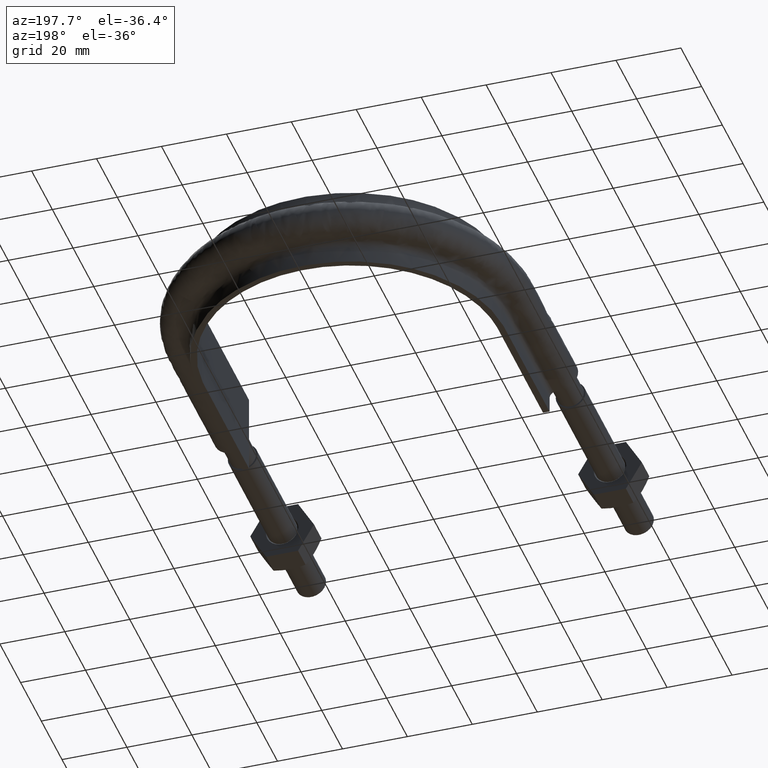
[diagram: clean part render]
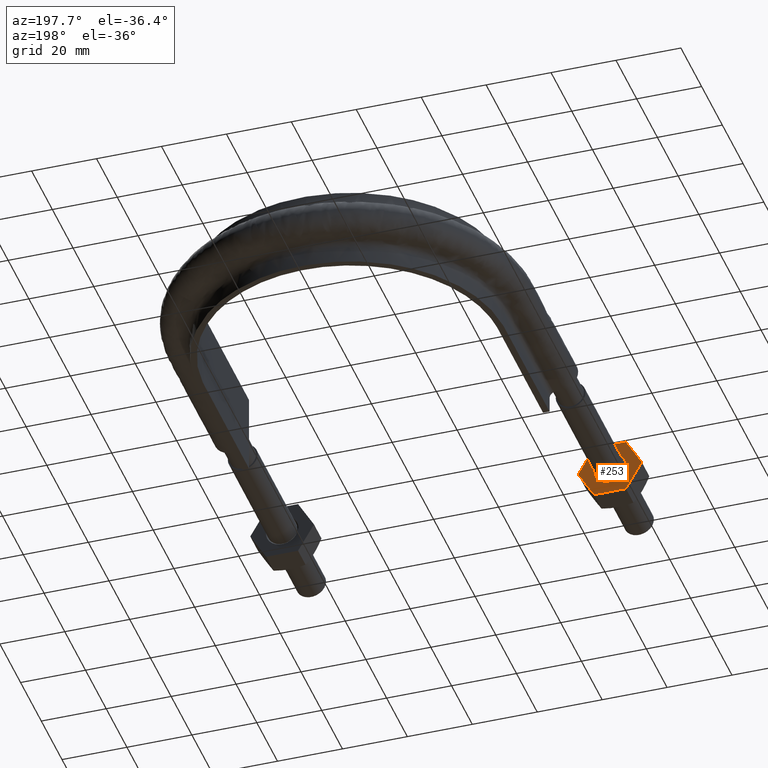
[diagram: same view with one face highlighted and labeled with its STEP entity id]
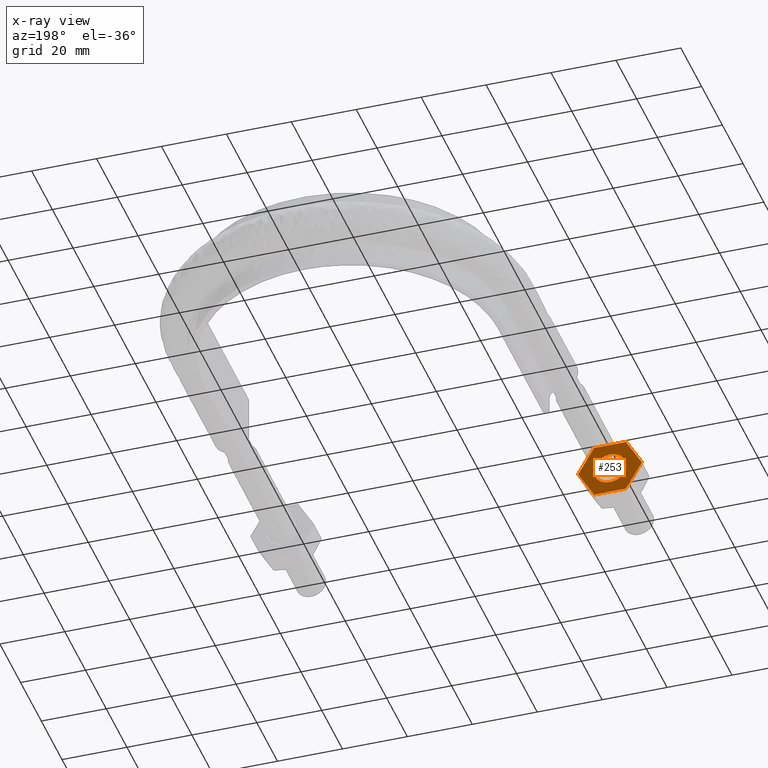
[diagram: x-ray of the same camera — body ghosted, the highlighted face saturated]
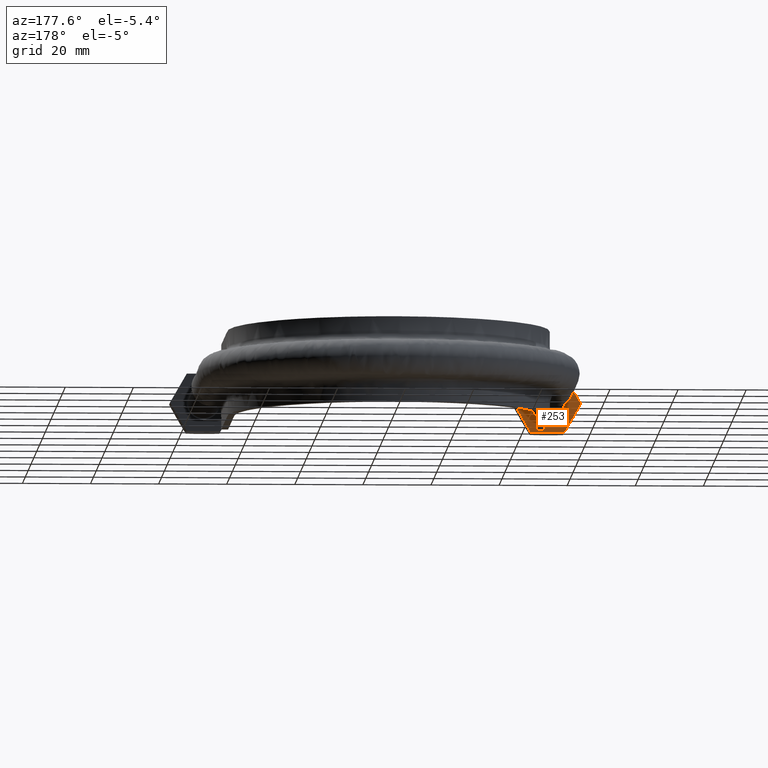
[diagram: same view with one face highlighted and labeled with its STEP entity id]
A machine part, auxiliary view. The second image highlights one B-rep face of the part: STEP entity #253.
The next image is the same camera in x-ray: the body ghosted, the highlighted face saturated — about 0% of this face is hidden behind the body in this view.
A second angle (auxiliary view) of the same face is appended — the face is thin or edge-on in the first view.
In plain terms, the highlighted planar face has unit normal (-0, -1, -0).
Its self-contained STEP definition (entity closure, byte-faithful):
#253 = ADVANCED_FACE( '', ( #375, #376 ), #377, .F. );
#375 = FACE_BOUND( '', #1361, .T. );
#376 = FACE_OUTER_BOUND( '', #1362, .T. );
#377 = PLANE( '', #1363 );
#1361 = EDGE_LOOP( '', ( #1677 ) );
#1362 = EDGE_LOOP( '', ( #1678, #1679, #1680, #1681, #1682, #1683, #1684, #1685, #1686, #1687, #1688, #1689 ) );
#1363 = AXIS2_PLACEMENT_3D( '', #1690, #1691, #1692 );
#1677 = ORIENTED_EDGE( '', *, *, #2055, .F. );
#1678 = ORIENTED_EDGE( '', *, *, #2056, .T. );
#1679 = ORIENTED_EDGE( '', *, *, #2057, .T. );
#1680 = ORIENTED_EDGE( '', *, *, #2058, .T. );
#1681 = ORIENTED_EDGE( '', *, *, #2051, .T. );
#1682 = ORIENTED_EDGE( '', *, *, #2059, .T. );
#1683 = ORIENTED_EDGE( '', *, *, #2060, .T. );
#1684 = ORIENTED_EDGE( '', *, *, #2061, .T. );
#1685 = ORIENTED_EDGE( '', *, *, #2062, .T. );
#1686 = ORIENTED_EDGE( '', *, *, #2063, .T. );
#1687 = ORIENTED_EDGE( '', *, *, #2064, .T. );
#1688 = ORIENTED_EDGE( '', *, *, #2065, .T. );
#1689 = ORIENTED_EDGE( '', *, *, #2066, .T. );
#1690 = CARTESIAN_POINT( '', ( -55.4000000000000, 28.0000000000000, 8.48704895708750 ) );
#1691 = DIRECTION( '', ( -2.44921270764475E-016, -1.00000000000000, -6.12303176911188E-017 ) );
#1692 = DIRECTION( '', ( 0.866025403784439, -2.42723201254762E-016, 0.500000000000000 ) );
#2051 = EDGE_CURVE( '', #2244, #2242, #2245, .T. );
#2055 = EDGE_CURVE( '', #2250, #2250, #2251, .T. );
#2056 = EDGE_CURVE( '', #2252, #2253, #2254, .T. );
#2057 = EDGE_CURVE( '', #2253, #2255, #2256, .T. );
#2058 = EDGE_CURVE( '', #2255, #2244, #2257, .T. );
#2059 = EDGE_CURVE( '', #2242, #2258, #2259, .T. );
#2060 = EDGE_CURVE( '', #2258, #2260, #2261, .T. );
#2061 = EDGE_CURVE( '', #2260, #2262, #2263, .T. );
#2062 = EDGE_CURVE( '', #2262, #2264, #2265, .T. );
#2063 = EDGE_CURVE( '', #2264, #2266, #2267, .T. );
#2064 = EDGE_CURVE( '', #2266, #2268, #2269, .T. );
#2065 = EDGE_CURVE( '', #2268, #2270, #2271, .T. );
#2066 = EDGE_CURVE( '', #2270, #2252, #2272, .T. );
#2242 = VERTEX_POINT( '', #2763 );
#2244 = VERTEX_POINT( '', #2766 );
#2245 = LINE( '', #2767, #2768 );
#2250 = VERTEX_POINT( '', #2781 );
#2251 = CIRCLE( '', #2782, 5.00000000000000 );
#2252 = VERTEX_POINT( '', #2783 );
#2253 = VERTEX_POINT( '', #2784 );
#2254 = CIRCLE( '', #2785, 9.80000000000000 );
#2255 = VERTEX_POINT( '', #2786 );
#2256 = LINE( '', #2787, #2788 );
#2257 = CIRCLE( '', #2789, 9.80000000000000 );
#2258 = VERTEX_POINT( '', #2790 );
#2259 = CIRCLE( '', #2791, 9.80000000000000 );
#2260 = VERTEX_POINT( '', #2792 );
#2261 = LINE( '', #2793, #2794 );
#2262 = VERTEX_POINT( '', #2795 );
#2263 = CIRCLE( '', #2796, 9.80000000000000 );
#2264 = VERTEX_POINT( '', #2797 );
#2265 = LINE( '', #2798, #2799 );
#2266 = VERTEX_POINT( '', #2800 );
#2267 = CIRCLE( '', #2801, 9.80000000000000 );
#2268 = VERTEX_POINT( '', #2802 );
#2269 = LINE( '', #2803, #2804 );
#2270 = VERTEX_POINT( '', #2805 );
#2271 = CIRCLE( '', #2806, 9.80000000000000 );
#2272 = LINE( '', #2807, #2808 );
#2763 = CARTESIAN_POINT( '', ( -45.5775337474837, 28.0000000000000, -8.47403835209862 ) );
#2766 = CARTESIAN_POINT( '', ( -40.7000343881808, 28.0000000000000, -0.0259616479013822 ) );
#2767 = CARTESIAN_POINT( '', ( -40.6887840678323, 28.0000000000000, -0.00647552145625091 ) );
#2768 = VECTOR( '', #3160, 1000.00000000000 );
#2781 = CARTESIAN_POINT( '', ( -54.8301270189222, 28.0000000000000, -2.50000000000000 ) );
#2782 = AXIS2_PLACEMENT_3D( '', #3165, #3166, #3167 );
#2783 = CARTESIAN_POINT( '', ( -45.6225006406971, 28.0000000000000, 8.50000000000000 ) );
#2784 = CARTESIAN_POINT( '', ( -45.5775337474837, 28.0000000000000, 8.47403835209862 ) );
#2785 = AXIS2_PLACEMENT_3D( '', #3168, #3169, #3170 );
#2786 = CARTESIAN_POINT( '', ( -40.7000343881808, 28.0000000000000, 0.0259616479013827 ) );
#2787 = CARTESIAN_POINT( '', ( -48.0387840678323, 28.0000000000000, 12.7370489570875 ) );
#2788 = VECTOR( '', #3171, 1000.00000000000 );
#2789 = AXIS2_PLACEMENT_3D( '', #3172, #3173, #3174 );
#2790 = CARTESIAN_POINT( '', ( -45.6225006406971, 28.0000000000000, -8.50000000000000 ) );
#2791 = AXIS2_PLACEMENT_3D( '', #3175, #3176, #3177 );
#2792 = CARTESIAN_POINT( '', ( -55.3774993593029, 28.0000000000000, -8.50000000000000 ) );
#2793 = CARTESIAN_POINT( '', ( -55.4000000000000, 28.0000000000000, -8.50000000000000 ) );
#2794 = VECTOR( '', #3178, 1000.00000000000 );
#2795 = CARTESIAN_POINT( '', ( -55.4224662525163, 28.0000000000000, -8.47403835209862 ) );
#2796 = AXIS2_PLACEMENT_3D( '', #3179, #3180, #3181 );
#2797 = CARTESIAN_POINT( '', ( -60.2999656118192, 28.0000000000000, -0.0259616479013787 ) );
#2798 = CARTESIAN_POINT( '', ( -62.7612159321677, 28.0000000000000, 4.23704895708750 ) );
#2799 = VECTOR( '', #3182, 1000.00000000000 );
#2800 = CARTESIAN_POINT( '', ( -60.2999656118192, 28.0000000000000, 0.0259616479013835 ) );
#2801 = AXIS2_PLACEMENT_3D( '', #3183, #3184, #3185 );
#2802 = CARTESIAN_POINT( '', ( -55.4224662525163, 28.0000000000000, 8.47403835209862 ) );
#2803 = CARTESIAN_POINT( '', ( -55.4112159321677, 28.0000000000000, 8.49352447854375 ) );
#2804 = VECTOR( '', #3186, 1000.00000000000 );
#2805 = CARTESIAN_POINT( '', ( -55.3774993593029, 28.0000000000000, 8.50000000000000 ) );
#2806 = AXIS2_PLACEMENT_3D( '', #3187, #3188, #3189 );
#2807 = CARTESIAN_POINT( '', ( -55.4000000000000, 28.0000000000000, 8.50000000000000 ) );
#2808 = VECTOR( '', #3190, 1000.00000000000 );
#3160 = DIRECTION( '', ( -0.500000000000000, 1.75487645984538E-016, -0.866025403784439 ) );
#3165 = CARTESIAN_POINT( '', ( -50.5000000000000, 28.0000000000000, 1.97964474674128E-015 ) );
#3166 = DIRECTION( '', ( 2.44921270764475E-016, 1.00000000000000, 6.12303176911188E-017 ) );
#3167 = DIRECTION( '', ( -0.866025403784439, 2.42723201254762E-016, -0.500000000000000 ) );
#3168 = CARTESIAN_POINT( '', ( -50.5000000000000, 28.0000000000000, 1.97964474674128E-015 ) );
#3169 = DIRECTION( '', ( 2.44921270764475E-016, 1.00000000000000, 6.12303176911188E-017 ) );
#3170 = DIRECTION( '', ( -0.866025403784439, 2.42723201254762E-016, -0.500000000000000 ) );
#3171 = DIRECTION( '', ( 0.500000000000000, -6.94336247799370E-017, -0.866025403784439 ) );
#3172 = CARTESIAN_POINT( '', ( -50.5000000000000, 28.0000000000000, 1.97964474674128E-015 ) );
#3173 = DIRECTION( '', ( 2.44921270764475E-016, 1.00000000000000, 6.12303176911188E-017 ) );
#3174 = DIRECTION( '', ( -0.866025403784439, 2.42723201254762E-016, -0.500000000000000 ) );
#3175 = CARTESIAN_POINT( '', ( -50.5000000000000, 28.0000000000000, 1.97964474674128E-015 ) );
#3176 = DIRECTION( '', ( 2.44921270764475E-016, 1.00000000000000, 6.12303176911188E-017 ) );
#3177 = DIRECTION( '', ( -0.866025403784439, 2.42723201254762E-016, -0.500000000000000 ) );
#3178 = DIRECTION( '', ( -1.00000000000000, 2.44921270764475E-016, 5.55111512312578E-017 ) );
#3179 = CARTESIAN_POINT( '', ( -50.5000000000000, 28.0000000000000, 1.97964474674128E-015 ) );
#3180 = DIRECTION( '', ( 2.44921270764475E-016, 1.00000000000000, 6.12303176911188E-017 ) );
#3181 = DIRECTION( '', ( -0.866025403784439, 2.42723201254762E-016, -0.500000000000000 ) );
#3182 = DIRECTION( '', ( -0.500000000000000, 6.94336247799370E-017, 0.866025403784439 ) );
#3183 = CARTESIAN_POINT( '', ( -50.5000000000000, 28.0000000000000, 1.97964474674128E-015 ) );
#3184 = DIRECTION( '', ( 2.44921270764475E-016, 1.00000000000000, 6.12303176911188E-017 ) );
#3185 = DIRECTION( '', ( -0.866025403784439, 2.42723201254762E-016, -0.500000000000000 ) );
#3186 = DIRECTION( '', ( 0.500000000000000, -1.75487645984538E-016, 0.866025403784439 ) );
#3187 = CARTESIAN_POINT( '', ( -50.5000000000000, 28.0000000000000, 1.97964474674128E-015 ) );
#3188 = DIRECTION( '', ( 2.44921270764475E-016, 1.00000000000000, 6.12303176911188E-017 ) );
#3189 = DIRECTION( '', ( -0.866025403784439, 2.42723201254762E-016, -0.500000000000000 ) );
#3190 = DIRECTION( '', ( 1.00000000000000, -2.44921270764475E-016, -5.55111512312578E-017 ) );